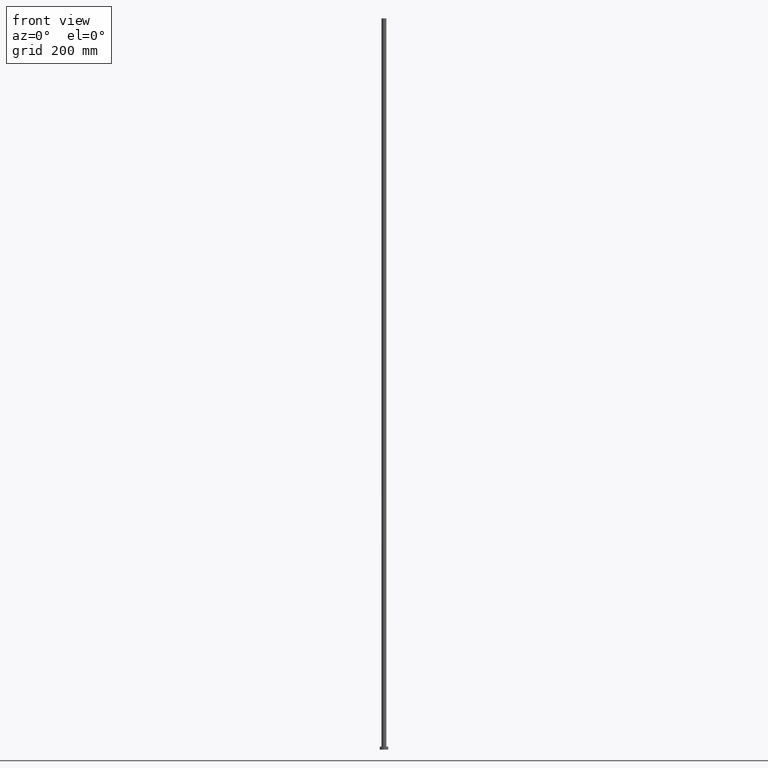
[diagram: clean part render]
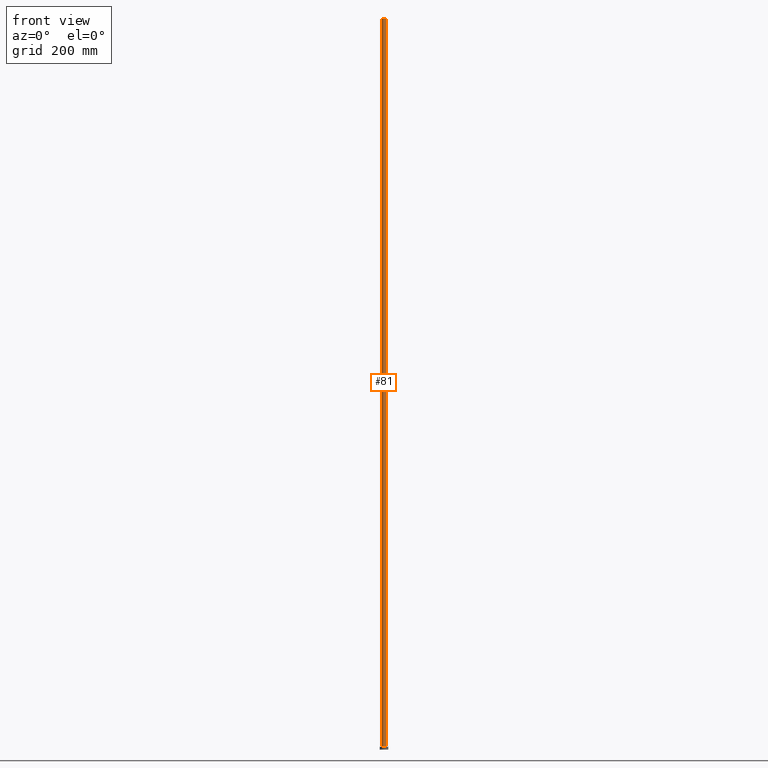
[diagram: same view with one face highlighted and labeled with its STEP entity id]
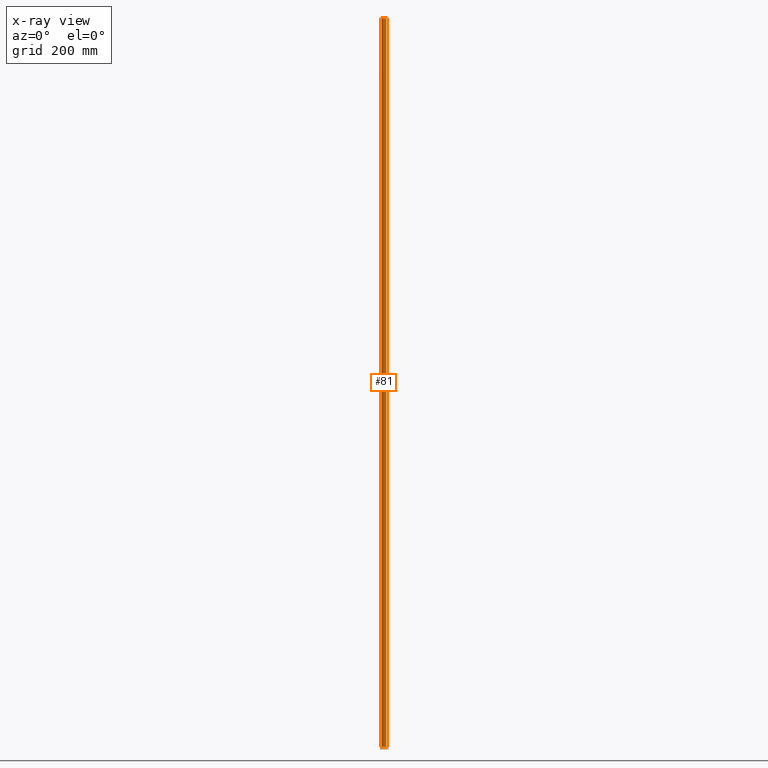
[diagram: x-ray of the same camera — body ghosted, the highlighted face saturated]
A machine part, front view. The second image highlights one B-rep face of the part: STEP entity #81.
The next image is the same camera in x-ray: the body ghosted, the highlighted face saturated — about 0% of this face is hidden behind the body in this view.
In plain terms, the highlighted cylindrical surface (edge-blend (fillet) strip) has radius 4 mm, axis along (-0, -0, -1).
Its self-contained STEP definition (entity closure, byte-faithful):
#4 = CARTESIAN_POINT ( 'NONE',  ( 4.000000000000000000, 4.898587196589412829E-16, 1200.000000000000000 ) ) ;
#16 = AXIS2_PLACEMENT_3D ( 'NONE', #159, #199, #124 ) ;
#20 = VERTEX_POINT ( 'NONE', #237 ) ;
#25 = EDGE_CURVE ( 'NONE', #132, #90, #239, .T. ) ;
#27 = EDGE_CURVE ( 'NONE', #20, #132, #115, .T. ) ;
#29 = DIRECTION ( 'NONE',  ( 0.000000000000000000, 0.000000000000000000, 1.000000000000000000 ) ) ;
#44 = FACE_OUTER_BOUND ( 'NONE', #168, .T. ) ;
#46 = CARTESIAN_POINT ( 'NONE',  ( -4.000000000000000000, 0.000000000000000000, 5.000000000000000000 ) ) ;
#53 = VERTEX_POINT ( 'NONE', #46 ) ;
#59 = ORIENTED_EDGE ( 'NONE', *, *, #27, .F. ) ;
#64 = VECTOR ( 'NONE', #120, 1000.000000000000000 ) ;
#65 = AXIS2_PLACEMENT_3D ( 'NONE', #197, #29, #149 ) ;
#70 = ORIENTED_EDGE ( 'NONE', *, *, #145, .T. ) ;
#72 = AXIS2_PLACEMENT_3D ( 'NONE', #241, #101, #147 ) ;
#76 = ORIENTED_EDGE ( 'NONE', *, *, #169, .T. ) ;
#81 = ADVANCED_FACE ( 'NONE', ( #44 ), #217, .T. ) ;
#87 = CARTESIAN_POINT ( 'NONE',  ( 4.000000000000000000, 4.898587196589412829E-16, 5.000000000000000000 ) ) ;
#90 = VERTEX_POINT ( 'NONE', #87 ) ;
#101 = DIRECTION ( 'NONE',  ( 0.000000000000000000, 0.000000000000000000, 1.000000000000000000 ) ) ;
#115 = CIRCLE ( 'NONE', #72, 4.000000000000000000 ) ;
#120 = DIRECTION ( 'NONE',  ( -0.000000000000000000, -0.000000000000000000, -1.000000000000000000 ) ) ;
#124 = DIRECTION ( 'NONE',  ( -1.000000000000000000, 0.000000000000000000, 0.000000000000000000 ) ) ;
#132 = VERTEX_POINT ( 'NONE', #4 ) ;
#145 = EDGE_CURVE ( 'NONE', #20, #53, #160, .T. ) ;
#147 = DIRECTION ( 'NONE',  ( 1.000000000000000000, 0.000000000000000000, 0.000000000000000000 ) ) ;
#149 = DIRECTION ( 'NONE',  ( 1.000000000000000000, 0.000000000000000000, 0.000000000000000000 ) ) ;
#153 = ORIENTED_EDGE ( 'NONE', *, *, #25, .F. ) ;
#159 = CARTESIAN_POINT ( 'NONE',  ( 0.000000000000000000, 0.000000000000000000, 1200.000000000000000 ) ) ;
#160 = LINE ( 'NONE', #238, #243 ) ;
#168 = EDGE_LOOP ( 'NONE', ( #153, #59, #70, #76 ) ) ;
#169 = EDGE_CURVE ( 'NONE', #53, #90, #204, .T. ) ;
#196 = CARTESIAN_POINT ( 'NONE',  ( 4.000000000000000000, 4.898587196589412829E-16, 1200.000000000000000 ) ) ;
#197 = CARTESIAN_POINT ( 'NONE',  ( 0.000000000000000000, 0.000000000000000000, 5.000000000000000000 ) ) ;
#199 = DIRECTION ( 'NONE',  ( -0.000000000000000000, -0.000000000000000000, -1.000000000000000000 ) ) ;
#200 = DIRECTION ( 'NONE',  ( -0.000000000000000000, -0.000000000000000000, -1.000000000000000000 ) ) ;
#204 = CIRCLE ( 'NONE', #65, 4.000000000000000000 ) ;
#217 = CYLINDRICAL_SURFACE ( 'NONE', #16, 4.000000000000000000 ) ;
#237 = CARTESIAN_POINT ( 'NONE',  ( -4.000000000000000000, 0.000000000000000000, 1200.000000000000000 ) ) ;
#238 = CARTESIAN_POINT ( 'NONE',  ( -4.000000000000000000, 0.000000000000000000, 1200.000000000000000 ) ) ;
#239 = LINE ( 'NONE', #196, #64 ) ;
#241 = CARTESIAN_POINT ( 'NONE',  ( 0.000000000000000000, 0.000000000000000000, 1200.000000000000000 ) ) ;
#243 = VECTOR ( 'NONE', #200, 1000.000000000000000 ) ;